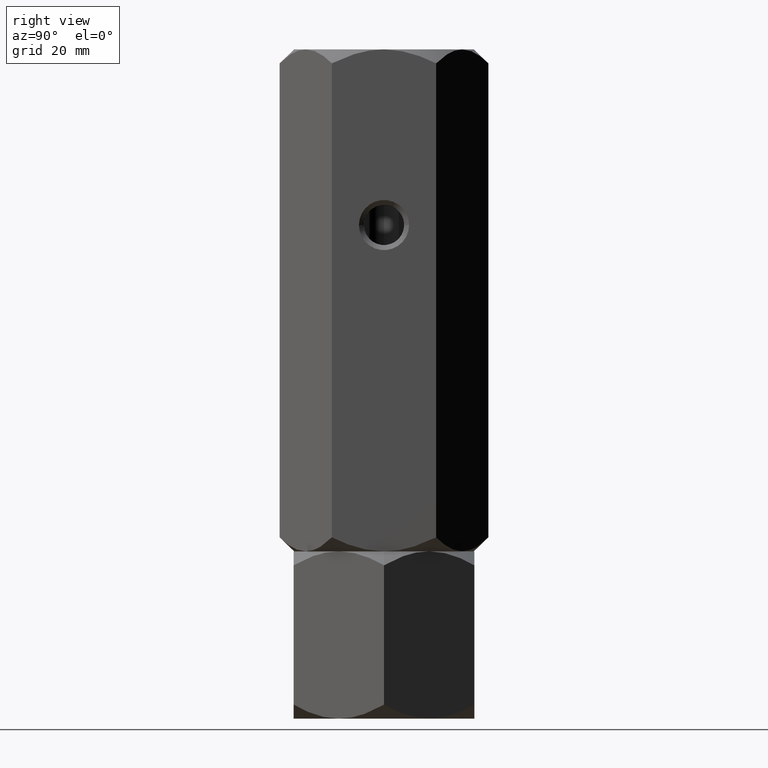
[diagram: clean part render]
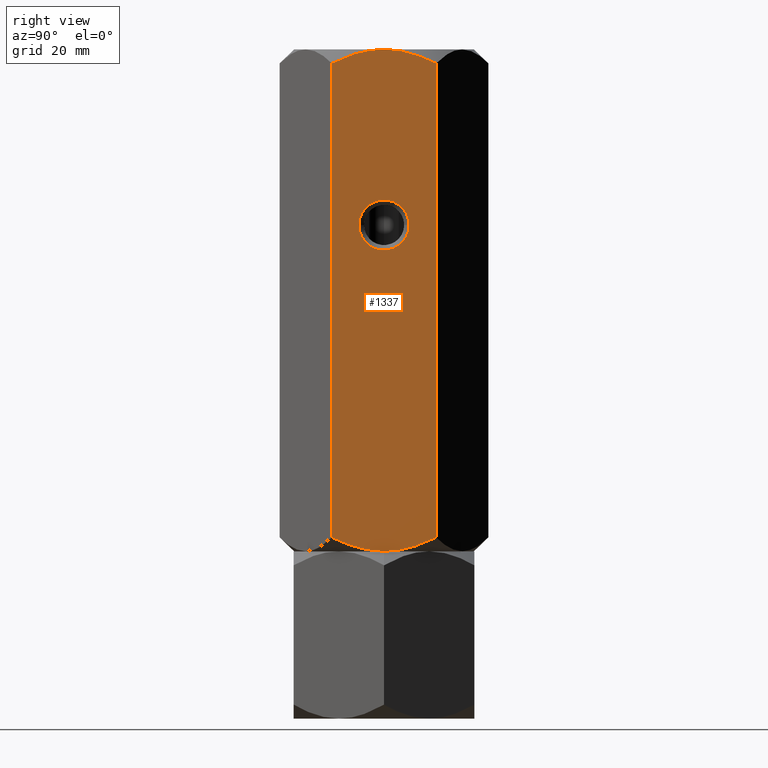
[diagram: same view with one face highlighted and labeled with its STEP entity id]
A machine part, right view. The second image highlights one B-rep face of the part: STEP entity #1337.
In plain terms, the highlighted planar face has unit normal (-1, -0, 0).
Its self-contained STEP definition (entity closure, byte-faithful):
#13 = DIRECTION ( 'NONE',  ( 1.669238443041287676E-16, -1.000000000000000000, 0.000000000000000000 ) ) ;
#42 = B_SPLINE_CURVE_WITH_KNOTS ( 'NONE', 3,
 ( #1241, #587, #1568, #917, #1214, #572, #1712, #1863 ),
 .UNSPECIFIED., .F., .F.,
 ( 4, 2, 2, 4 ),
 ( 0.1278099879825815854, 0.1331388918532575849, 0.1358033437885955708, 0.1384677957239335566 ),
 .UNSPECIFIED. ) ;
#45 = CARTESIAN_POINT ( 'NONE',  ( 18.00000000000000000, 6.228990999673044371, 34.36251136990551203 ) ) ;
#58 = CARTESIAN_POINT ( 'NONE',  ( 18.00000000000000000, 8.347141026087369298, 35.17082227915910408 ) ) ;
#61 = EDGE_LOOP ( 'NONE', ( #1716, #564, #177, #320, #968, #1512 ) ) ;
#63 = CARTESIAN_POINT ( 'NONE',  ( 18.00000000000000000, 3.613967831719439250, 33.67110738872835185 ) ) ;
#78 = ORIENTED_EDGE ( 'NONE', *, *, #1105, .T. ) ;
#82 = LINE ( 'NONE', #732, #1877 ) ;
#112 = CARTESIAN_POINT ( 'NONE',  ( 18.00000000000000355, 4.489815314339055341, 132.8005018324903403 ) ) ;
#115 = CARTESIAN_POINT ( 'NONE',  ( 18.00000000000000355, -8.778074610959542667, 35.31082790693296403 ) ) ;
#123 = VERTEX_POINT ( 'NONE', #419 ) ;
#165 = VERTEX_POINT ( 'NONE', #897 ) ;
#177 = ORIENTED_EDGE ( 'NONE', *, *, #600, .F. ) ;
#225 = CARTESIAN_POINT ( 'NONE',  ( 18.00000000000000355, 9.992749120313220601, 35.91816516160979944 ) ) ;
#227 = EDGE_CURVE ( 'NONE', #1571, #1266, #42, .T. ) ;
#237 = EDGE_CURVE ( 'NONE', #483, #123, #381, .T. ) ;
#276 = CARTESIAN_POINT ( 'NONE',  ( 18.00000000000000711, 3.609709903701550537, 132.9962641319732768 ) ) ;
#301 = CARTESIAN_POINT ( 'NONE',  ( 18.00000000000000355, 7.507490410494529698, 131.8342518833695465 ) ) ;
#311 = CARTESIAN_POINT ( 'NONE',  ( 18.00000000000000355, -10.39230484541327115, 130.5487236425067863 ) ) ;
#320 = ORIENTED_EDGE ( 'NONE', *, *, #444, .F. ) ;
#351 = LINE ( 'NONE', #1264, #814 ) ;
#355 = CARTESIAN_POINT ( 'NONE',  ( 18.00000000000000355, -10.39230484541326938, 133.3333333333333144 ) ) ;
#381 = CIRCLE ( 'NONE', #931, 5.000000000000004441 ) ;
#407 = CARTESIAN_POINT ( 'NONE',  ( 18.00000000000000355, 3.004629197474317668E-15, 33.33333333333330017 ) ) ;
#419 = CARTESIAN_POINT ( 'NONE',  ( 18.00000000000000000, 5.000000000000004441, 98.33333333333330017 ) ) ;
#427 = DIRECTION ( 'NONE',  ( -1.000000000000000000, -1.669238443041287676E-16, 0.000000000000000000 ) ) ;
#444 = EDGE_CURVE ( 'NONE', #1866, #165, #1686, .T. ) ;
#445 = AXIS2_PLACEMENT_3D ( 'NONE', #1733, #966, #1386 ) ;
#483 = VERTEX_POINT ( 'NONE', #1488 ) ;
#564 = ORIENTED_EDGE ( 'NONE', *, *, #1813, .T. ) ;
#572 = CARTESIAN_POINT ( 'NONE',  ( 18.00000000000000711, -1.805664286422178799, 133.2645055555531428 ) ) ;
#580 = CARTESIAN_POINT ( 'NONE',  ( 18.00000000000000355, 8.769604937885729257, 131.3255090817757207 ) ) ;
#587 = CARTESIAN_POINT ( 'NONE',  ( 18.00000000000000355, -8.774731520318150402, 131.3575103050543476 ) ) ;
#592 = CARTESIAN_POINT ( 'NONE',  ( 18.00000000000000355, 10.39230484541326582, 130.5487236425067863 ) ) ;
#600 = EDGE_CURVE ( 'NONE', #165, #1493, #1814, .T. ) ;
#617 = DIRECTION ( 'NONE',  ( 0.000000000000000000, -1.000000000000000000, 0.000000000000000000 ) ) ;
#624 = CARTESIAN_POINT ( 'NONE',  ( 18.00000000000000000, 3.004629197474316879E-15, 133.3333333333333144 ) ) ;
#691 = CARTESIAN_POINT ( 'NONE',  ( 18.00000000000000000, 1.814095138421047526, 33.41883099885364317 ) ) ;
#732 = CARTESIAN_POINT ( 'NONE',  ( 18.00000000000000355, -10.39230484541326938, 133.3333333333333144 ) ) ;
#734 = CARTESIAN_POINT ( 'NONE',  ( 18.00000000000000355, -1.810443484980117201, 33.33333333333330017 ) ) ;
#741 = CARTESIAN_POINT ( 'NONE',  ( 18.00000000000000000, 6.223496946123845852, 132.2920538615294106 ) ) ;
#746 = CARTESIAN_POINT ( 'NONE',  ( 18.00000000000000355, -10.39230484541326938, 36.11794302415982116 ) ) ;
#814 = VECTOR ( 'NONE', #1909, 1000.000000000000000 ) ;
#843 = B_SPLINE_CURVE_WITH_KNOTS ( 'NONE', 3,
 ( #1810, #1511, #1172, #1978, #1369, #276, #112, #1045, #741, #1071, #301, #580, #1195, #592 ),
 .UNSPECIFIED., .F., .F.,
 ( 4, 2, 2, 2, 2, 2, 4 ),
 ( 0.1384677957239335566, 0.1397979318438594964, 0.1411280679637854085, 0.1437883402036372604, 0.1451184763235632003, 0.1464486124434891123, 0.1491088846833409920 ),
 .UNSPECIFIED. ) ;
#894 = CARTESIAN_POINT ( 'NONE',  ( 18.00000000000000000, -7.109965447143213879, 34.61309850096017726 ) ) ;
#897 = CARTESIAN_POINT ( 'NONE',  ( 18.00000000000000355, 3.004629197474317668E-15, 33.33333333333330017 ) ) ;
#917 = CARTESIAN_POINT ( 'NONE',  ( 18.00000000000000000, -4.475081985729257639, 132.8044625281006006 ) ) ;
#931 = AXIS2_PLACEMENT_3D ( 'NONE', #1854, #427, #617 ) ;
#966 = DIRECTION ( 'NONE',  ( -1.000000000000000000, -1.669238443041287676E-16, 0.000000000000000000 ) ) ;
#968 = ORIENTED_EDGE ( 'NONE', *, *, #1551, .F. ) ;
#1003 = CARTESIAN_POINT ( 'NONE',  ( 18.00000000000000000, 10.39230484541326760, 36.11794302415981406 ) ) ;
#1045 = CARTESIAN_POINT ( 'NONE',  ( 18.00000000000000355, 5.792286176018575539, 132.4289044973346563 ) ) ;
#1071 = CARTESIAN_POINT ( 'NONE',  ( 18.00000000000000711, 7.080606646322098463, 131.9949414621133030 ) ) ;
#1085 = CARTESIAN_POINT ( 'NONE',  ( 18.00000000000000355, 3.004629197474317668E-15, 33.33333333333330017 ) ) ;
#1105 = EDGE_CURVE ( 'NONE', #123, #483, #1775, .T. ) ;
#1135 = FACE_OUTER_BOUND ( 'NONE', #61, .T. ) ;
#1172 = CARTESIAN_POINT ( 'NONE',  ( 17.99999999999999645, 0.9087126234396294411, 133.3161085293293411 ) ) ;
#1177 = CARTESIAN_POINT ( 'NONE',  ( 18.00000000000000711, 2.268365306453414831, 33.47027849005760913 ) ) ;
#1185 = CARTESIAN_POINT ( 'NONE',  ( 18.00000000000000000, 10.39230484541326760, 36.11794302415981406 ) ) ;
#1195 = CARTESIAN_POINT ( 'NONE',  ( 17.99999999999999645, 9.589039146340004649, 130.9503564920434542 ) ) ;
#1214 = CARTESIAN_POINT ( 'NONE',  ( 18.00000000000000711, -3.589319173232463189, 133.0001577798414019 ) ) ;
#1234 = CARTESIAN_POINT ( 'NONE',  ( 18.00000000000000355, -10.39230484541326938, 36.11794302415982116 ) ) ;
#1241 = CARTESIAN_POINT ( 'NONE',  ( 18.00000000000000355, -10.39230484541327115, 130.5487236425067863 ) ) ;
#1264 = CARTESIAN_POINT ( 'NONE',  ( 18.00000000000000000, 10.39230484541326760, 133.3333333333333144 ) ) ;
#1266 = VERTEX_POINT ( 'NONE', #624 ) ;
#1282 = DIRECTION ( 'NONE',  ( -1.000000000000000000, -1.669238443041287676E-16, 0.000000000000000000 ) ) ;
#1308 = CARTESIAN_POINT ( 'NONE',  ( 18.00000000000000711, 4.494632227792660473, 33.86738326141611566 ) ) ;
#1334 = AXIS2_PLACEMENT_3D ( 'NONE', #355, #1282, #13 ) ;
#1337 = ADVANCED_FACE ( 'NONE', ( #1426, #1135 ), #1436, .F. ) ;
#1369 = CARTESIAN_POINT ( 'NONE',  ( 18.00000000000000355, 2.268326247884227875, 133.1963592391387579 ) ) ;
#1386 = DIRECTION ( 'NONE',  ( 0.000000000000000000, -1.000000000000000000, 0.000000000000000000 ) ) ;
#1426 = FACE_BOUND ( 'NONE', #1553, .T. ) ;
#1436 = PLANE ( 'NONE',  #1334 ) ;
#1446 = EDGE_CURVE ( 'NONE', #1266, #2031, #843, .T. ) ;
#1463 = CARTESIAN_POINT ( 'NONE',  ( 18.00000000000000000, 8.765915541430077340, 35.35100532987971178 ) ) ;
#1488 = CARTESIAN_POINT ( 'NONE',  ( 18.00000000000000000, -5.000000000000000888, 98.33333333333330017 ) ) ;
#1493 = VERTEX_POINT ( 'NONE', #1234 ) ;
#1500 = CARTESIAN_POINT ( 'NONE',  ( 18.00000000000000355, 7.082707117959931686, 34.66128091149799673 ) ) ;
#1511 = CARTESIAN_POINT ( 'NONE',  ( 18.00000000000000000, 0.4526418623711511158, 133.3333333333333144 ) ) ;
#1512 = ORIENTED_EDGE ( 'NONE', *, *, #1446, .F. ) ;
#1533 = DIRECTION ( 'NONE',  ( -0.000000000000000000, -0.000000000000000000, -1.000000000000000000 ) ) ;
#1551 = EDGE_CURVE ( 'NONE', #2031, #1866, #351, .T. ) ;
#1553 = EDGE_LOOP ( 'NONE', ( #78, #1659 ) ) ;
#1568 = CARTESIAN_POINT ( 'NONE',  ( 18.00000000000000355, -7.107311090567392853, 132.0542086361348879 ) ) ;
#1571 = VERTEX_POINT ( 'NONE', #311 ) ;
#1646 = CARTESIAN_POINT ( 'NONE',  ( 18.00000000000000711, 0.4513223419669386560, 33.33333333333329307 ) ) ;
#1659 = ORIENTED_EDGE ( 'NONE', *, *, #237, .T. ) ;
#1686 = B_SPLINE_CURVE_WITH_KNOTS ( 'NONE', 3,
 ( #1003, #225, #1826, #1463, #58, #1500, #45, #1308, #63, #1177, #691, #1957, #1646, #407 ),
 .UNSPECIFIED., .F., .F.,
 ( 4, 2, 2, 2, 2, 2, 4 ),
 ( 0.1004087599824664279, 0.1017054273137732168, 0.1030020946450800057, 0.1055954293076935696, 0.1081887639703071335, 0.1094854313016139225, 0.1107820986329207114 ),
 .UNSPECIFIED. ) ;
#1712 = CARTESIAN_POINT ( 'NONE',  ( 18.00000000000000000, -0.9067060642462330122, 133.3333333333333144 ) ) ;
#1716 = ORIENTED_EDGE ( 'NONE', *, *, #227, .F. ) ;
#1733 = CARTESIAN_POINT ( 'NONE',  ( 18.00000000000000000, 3.004629197474317668E-15, 98.33333333333330017 ) ) ;
#1775 = CIRCLE ( 'NONE', #445, 5.000000000000004441 ) ;
#1810 = CARTESIAN_POINT ( 'NONE',  ( 18.00000000000000000, 3.004629197474316879E-15, 133.3333333333333144 ) ) ;
#1813 = EDGE_CURVE ( 'NONE', #1571, #1493, #82, .T. ) ;
#1814 = B_SPLINE_CURVE_WITH_KNOTS ( 'NONE', 3,
 ( #1085, #734, #2005, #894, #115, #746 ),
 .UNSPECIFIED., .F., .F.,
 ( 4, 2, 4 ),
 ( 0.1107820986329207114, 0.1159835759449454884, 0.1211850532569702515 ),
 .UNSPECIFIED. ) ;
#1826 = CARTESIAN_POINT ( 'NONE',  ( 18.00000000000000000, 9.587949197936604051, 35.72437761027131842 ) ) ;
#1854 = CARTESIAN_POINT ( 'NONE',  ( 18.00000000000000000, 3.004629197474317668E-15, 98.33333333333330017 ) ) ;
#1863 = CARTESIAN_POINT ( 'NONE',  ( 18.00000000000000000, 3.004629197474316879E-15, 133.3333333333333144 ) ) ;
#1866 = VERTEX_POINT ( 'NONE', #1185 ) ;
#1877 = VECTOR ( 'NONE', #1533, 1000.000000000000000 ) ;
#1909 = DIRECTION ( 'NONE',  ( -0.000000000000000000, -0.000000000000000000, -1.000000000000000000 ) ) ;
#1957 = CARTESIAN_POINT ( 'NONE',  ( 18.00000000000000000, 0.9043953770119622648, 33.35033129737433910 ) ) ;
#1978 = CARTESIAN_POINT ( 'NONE',  ( 17.99999999999999645, 1.817661187389379540, 133.2474680458177829 ) ) ;
#2005 = CARTESIAN_POINT ( 'NONE',  ( 18.00000000000000711, -3.592318780390969302, 33.61070979931489688 ) ) ;
#2031 = VERTEX_POINT ( 'NONE', #2038 ) ;
#2038 = CARTESIAN_POINT ( 'NONE',  ( 18.00000000000000355, 10.39230484541326582, 130.5487236425067863 ) ) ;